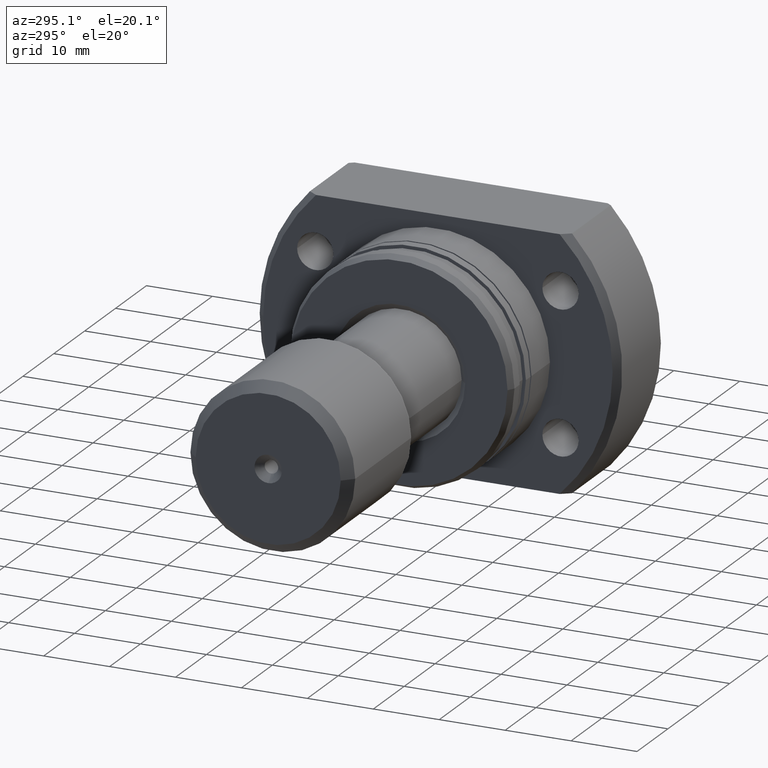
[diagram: clean part render]
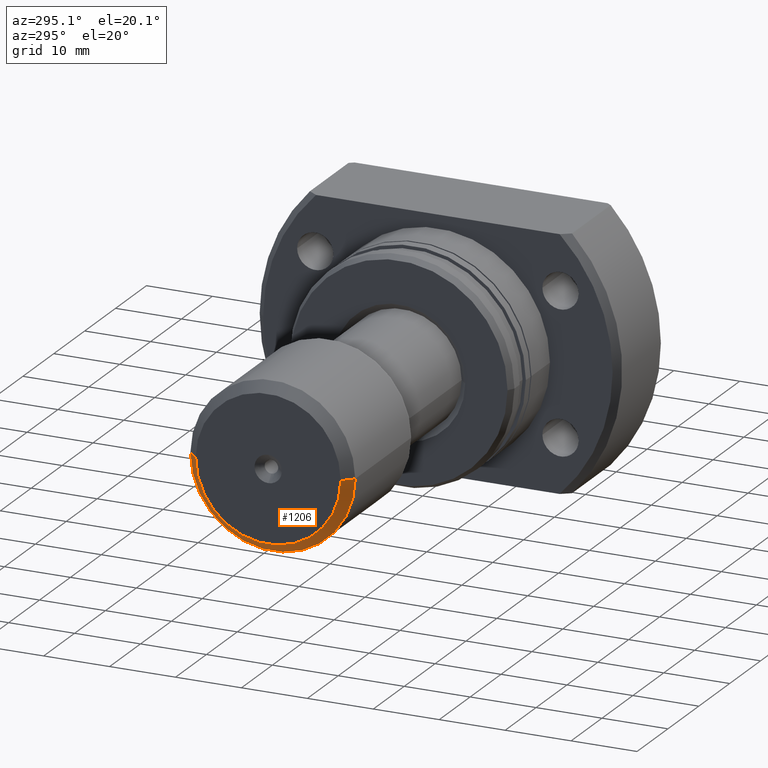
[diagram: same view with one face highlighted and labeled with its STEP entity id]
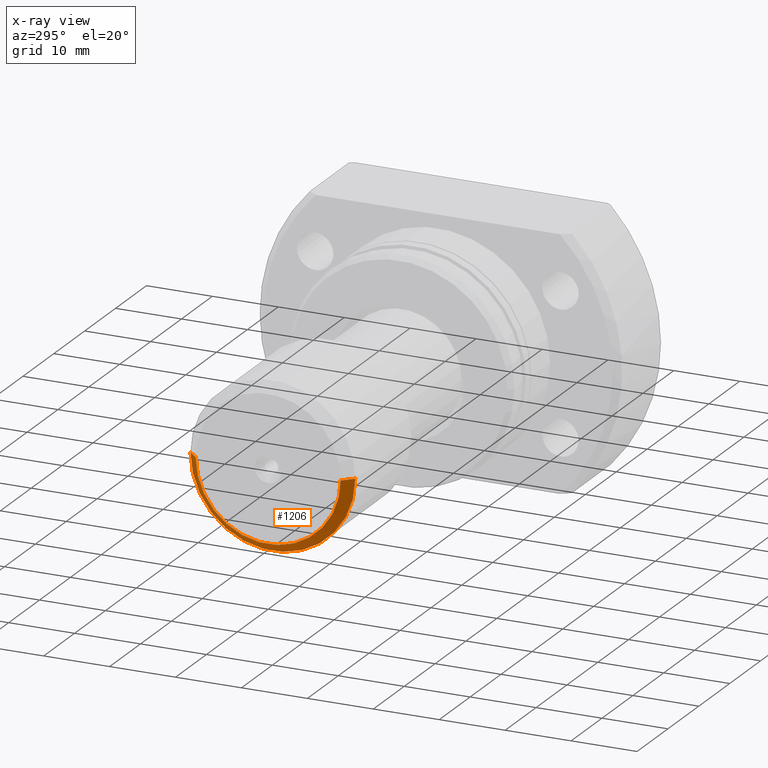
[diagram: x-ray of the same camera — body ghosted, the highlighted face saturated]
A machine part, auxiliary view. The second image highlights one B-rep face of the part: STEP entity #1206.
The next image is the same camera in x-ray: the body ghosted, the highlighted face saturated — about 0% of this face is hidden behind the body in this view.
In plain terms, the highlighted conical surface has half-angle 45 deg.
Its self-contained STEP definition (entity closure, byte-faithful):
#48 = DIRECTION ( 'NONE',  ( 1.000000000000000000, 1.069542322069065801E-17, 0.000000000000000000 ) ) ;
#258 = EDGE_CURVE ( 'NONE', #956, #574, #1531, .T. ) ;
#340 = CARTESIAN_POINT ( 'NONE',  ( 1.111812168206894135E-15, 11.00000000000000178, 0.000000000000000000 ) ) ;
#574 = VERTEX_POINT ( 'NONE', #1937 ) ;
#667 = CARTESIAN_POINT ( 'NONE',  ( 1.111812168206894135E-15, 11.00000000000000178, 0.000000000000000000 ) ) ;
#706 = DIRECTION ( 'NONE',  ( -1.000000000000000000, -1.069542322069065801E-17, -0.000000000000000000 ) ) ;
#810 = CARTESIAN_POINT ( 'NONE',  ( 1.229461823634491368E-15, 1.314961453745302249E-32, 0.000000000000000000 ) ) ;
#956 = VERTEX_POINT ( 'NONE', #2916 ) ;
#971 = CARTESIAN_POINT ( 'NONE',  ( 1.500000000000001554, 1.604313483103600319E-17, 0.000000000000000000 ) ) ;
#985 = DIRECTION ( 'NONE',  ( 1.734723475976807094E-17, -1.000000000000000000, 0.000000000000000000 ) ) ;
#1128 = EDGE_CURVE ( 'NONE', #2636, #1887, #1953, .T. ) ;
#1206 = ADVANCED_FACE ( 'NONE', ( #2083 ), #1648, .T. ) ;
#1456 = ORIENTED_EDGE ( 'NONE', *, *, #258, .T. ) ;
#1467 = LINE ( 'NONE', #667, #2173 ) ;
#1531 = CIRCLE ( 'NONE', #2204, 12.50000000000000000 ) ;
#1570 = DIRECTION ( 'NONE',  ( 0.7071067811865477948, -0.7071067811865473507, 8.659560562354931626E-17 ) ) ;
#1622 = CARTESIAN_POINT ( 'NONE',  ( 1.347111479062088602E-15, -11.00000000000000178, 1.347111479062088602E-15 ) ) ;
#1648 = CONICAL_SURFACE ( 'NONE', #1751, 11.00000000000000178, 0.7853981633974480570 ) ;
#1710 = DIRECTION ( 'NONE',  ( 1.069542322069065647E-17, -1.000000000000000000, 0.000000000000000000 ) ) ;
#1751 = AXIS2_PLACEMENT_3D ( 'NONE', #810, #48, #1828 ) ;
#1828 = DIRECTION ( 'NONE',  ( -1.069542322069065647E-17, 1.000000000000000000, 0.000000000000000000 ) ) ;
#1887 = VERTEX_POINT ( 'NONE', #3206 ) ;
#1930 = VECTOR ( 'NONE', #1570, 999.9999999999998863 ) ;
#1937 = CARTESIAN_POINT ( 'NONE',  ( 1.500000000000001776, -12.50000000000000000, 1.530808498934191521E-15 ) ) ;
#1953 = CIRCLE ( 'NONE', #2364, 11.00000000000000178 ) ;
#1972 = DIRECTION ( 'NONE',  ( -1.000000000000000000, -1.069542322069065801E-17, -0.000000000000000000 ) ) ;
#2083 = FACE_OUTER_BOUND ( 'NONE', #2705, .T. ) ;
#2099 = LINE ( 'NONE', #1622, #1930 ) ;
#2173 = VECTOR ( 'NONE', #2690, 999.9999999999998863 ) ;
#2204 = AXIS2_PLACEMENT_3D ( 'NONE', #971, #1972, #985 ) ;
#2358 = ORIENTED_EDGE ( 'NONE', *, *, #2761, .T. ) ;
#2364 = AXIS2_PLACEMENT_3D ( 'NONE', #2750, #706, #1710 ) ;
#2415 = ORIENTED_EDGE ( 'NONE', *, *, #3070, .F. ) ;
#2636 = VERTEX_POINT ( 'NONE', #340 ) ;
#2690 = DIRECTION ( 'NONE',  ( 0.7071067811865477948, 0.7071067811865473507, 0.000000000000000000 ) ) ;
#2705 = EDGE_LOOP ( 'NONE', ( #2415, #2960, #2358, #1456 ) ) ;
#2750 = CARTESIAN_POINT ( 'NONE',  ( 1.229461823634491368E-15, 1.314961453745302249E-32, 0.000000000000000000 ) ) ;
#2761 = EDGE_CURVE ( 'NONE', #2636, #956, #1467, .T. ) ;
#2916 = CARTESIAN_POINT ( 'NONE',  ( 1.500000000000001332, 12.50000000000000000, 0.000000000000000000 ) ) ;
#2960 = ORIENTED_EDGE ( 'NONE', *, *, #1128, .F. ) ;
#3070 = EDGE_CURVE ( 'NONE', #1887, #574, #2099, .T. ) ;
#3206 = CARTESIAN_POINT ( 'NONE',  ( 1.347111479062088602E-15, -11.00000000000000178, 1.438959988998140160E-15 ) ) ;